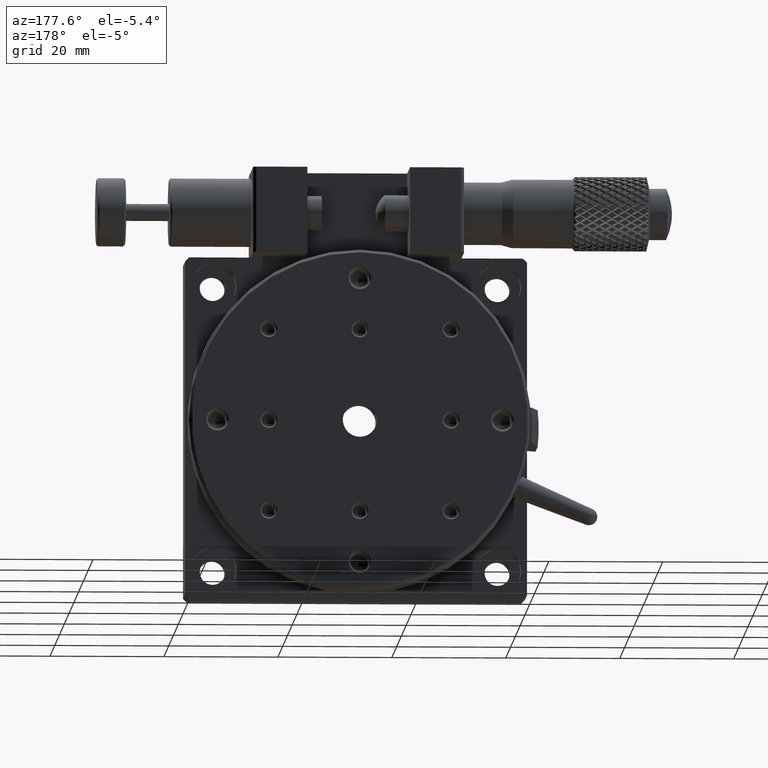
[diagram: clean part render]
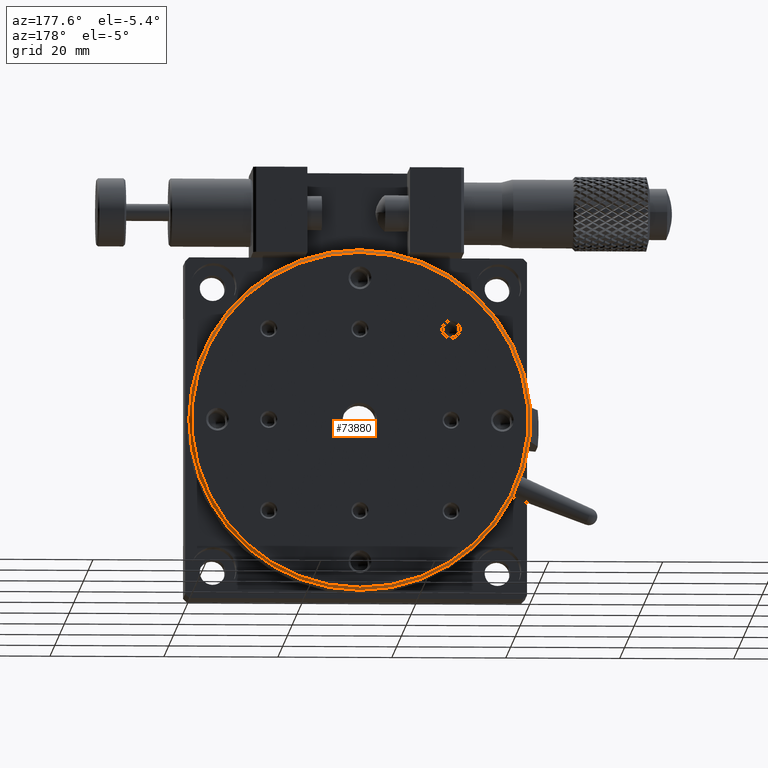
[diagram: same view with one face highlighted and labeled with its STEP entity id]
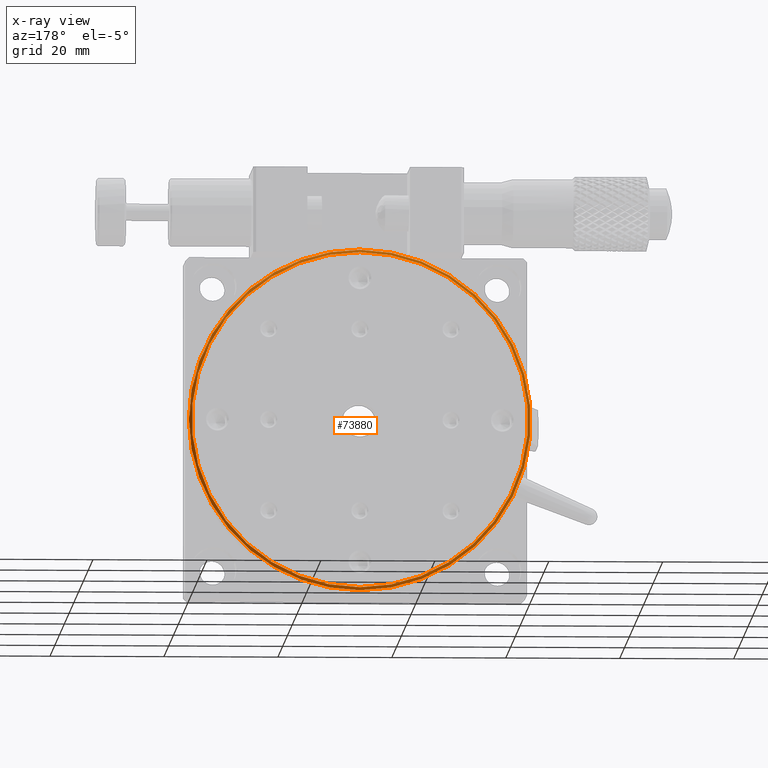
[diagram: x-ray of the same camera — body ghosted, the highlighted face saturated]
A machine part, auxiliary view. The second image highlights one B-rep face of the part: STEP entity #73880.
The next image is the same camera in x-ray: the body ghosted, the highlighted face saturated — about 0% of this face is hidden behind the body in this view.
In plain terms, the highlighted conical surface has half-angle 45 deg.
Its self-contained STEP definition (entity closure, byte-faithful):
#3359 = CARTESIAN_POINT ( 'NONE',  ( 30.00000000000000000, 24.50000000000000000, -30.00000000000000000 ) ) ;
#3573 = DIRECTION ( 'NONE',  ( 0.000000000000000000, 0.000000000000000000, -1.000000000000000000 ) ) ;
#5436 = AXIS2_PLACEMENT_3D ( 'NONE', #41478, #79657, #47073 ) ;
#10027 = CARTESIAN_POINT ( 'NONE',  ( 30.00000000000000000, 24.99999999999999289, -30.00000000000000000 ) ) ;
#16086 = ORIENTED_EDGE ( 'NONE', *, *, #71658, .T. ) ;
#16262 = CIRCLE ( 'NONE', #64201, 29.50000000000001066 ) ;
#22047 = DIRECTION ( 'NONE',  ( -0.000000000000000000, -1.000000000000000000, -5.782411586589357392E-17 ) ) ;
#22670 = DIRECTION ( 'NONE',  ( -0.000000000000000000, 1.000000000000000000, -0.000000000000000000 ) ) ;
#27342 = FACE_OUTER_BOUND ( 'NONE', #54956, .T. ) ;
#37074 = EDGE_LOOP ( 'NONE', ( #16086 ) ) ;
#38342 = CONICAL_SURFACE ( 'NONE', #5436, 30.00000000000000000, 0.7853981633974447263 ) ;
#41478 = CARTESIAN_POINT ( 'NONE',  ( 30.00000000000000000, 24.50000000000000000, -30.00000000000000000 ) ) ;
#42221 = CARTESIAN_POINT ( 'NONE',  ( 60.00000000000000000, 24.50000000000000000, -30.00000000000000000 ) ) ;
#47073 = DIRECTION ( 'NONE',  ( 0.000000000000000000, 0.000000000000000000, -1.000000000000000000 ) ) ;
#50775 = VERTEX_POINT ( 'NONE', #69197 ) ;
#53452 = ORIENTED_EDGE ( 'NONE', *, *, #61500, .T. ) ;
#54956 = EDGE_LOOP ( 'NONE', ( #53452 ) ) ;
#61500 = EDGE_CURVE ( 'NONE', #80422, #80422, #70930, .T. ) ;
#64201 = AXIS2_PLACEMENT_3D ( 'NONE', #10027, #22047, #3573 ) ;
#66760 = FACE_BOUND ( 'NONE', #37074, .T. ) ;
#69197 = CARTESIAN_POINT ( 'NONE',  ( 30.00000000000000000, 24.99999999999999289, -59.50000000000001421 ) ) ;
#70930 = CIRCLE ( 'NONE', #77815, 30.00000000000000000 ) ;
#71658 = EDGE_CURVE ( 'NONE', #50775, #50775, #16262, .T. ) ;
#73880 = ADVANCED_FACE ( 'NONE', ( #66760, #27342 ), #38342, .T. ) ;
#77815 = AXIS2_PLACEMENT_3D ( 'NONE', #3359, #22670, #81841 ) ;
#79657 = DIRECTION ( 'NONE',  ( -0.000000000000000000, -1.000000000000000000, -5.782411586589357392E-17 ) ) ;
#80422 = VERTEX_POINT ( 'NONE', #42221 ) ;
#81841 = DIRECTION ( 'NONE',  ( 1.000000000000000000, 0.000000000000000000, 0.000000000000000000 ) ) ;